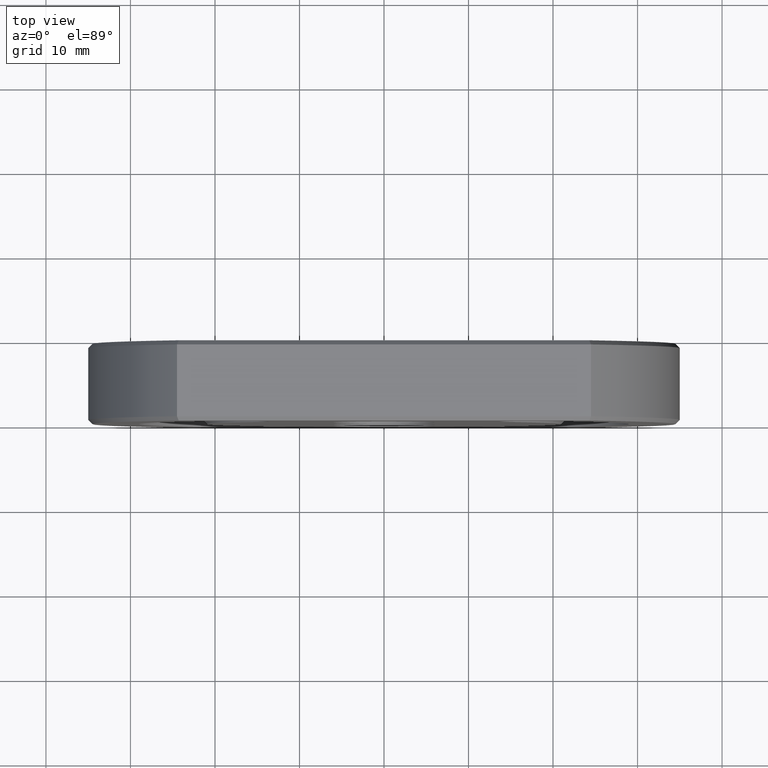
[diagram: clean part render]
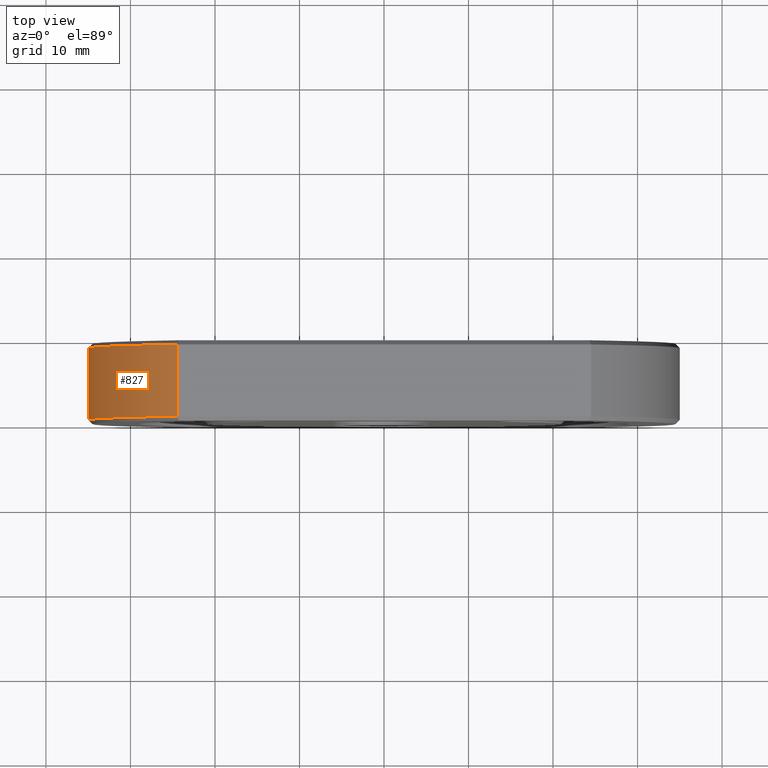
[diagram: same view with one face highlighted and labeled with its STEP entity id]
A machine part, top view. The second image highlights one B-rep face of the part: STEP entity #827.
In plain terms, the highlighted cylindrical surface (partial cylindrical patch) has radius 35 mm, axis along (-0, -1, -0).
Its self-contained STEP definition (entity closure, byte-faithful):
#2 = DIRECTION ( 'NONE',  ( -0.0000000000000000000, -1.000000000000000000, -0.0000000000000000000 ) ) ;
#50 = DIRECTION ( 'NONE',  ( -0.0000000000000000000, -1.000000000000000000, -0.0000000000000000000 ) ) ;
#89 = CARTESIAN_POINT ( 'NONE',  ( -24.49489742783178400, 9.500000000000000000, -25.00000000000000700 ) ) ;
#100 = CARTESIAN_POINT ( 'NONE',  ( 0.0000000000000000000, 9.500000000000000000, 0.0000000000000000000 ) ) ;
#146 = CARTESIAN_POINT ( 'NONE',  ( 0.0000000000000000000, 9.000000000000000000, 0.0000000000000000000 ) ) ;
#168 = DIRECTION ( 'NONE',  ( 0.0000000000000000000, 0.0000000000000000000, 1.000000000000000000 ) ) ;
#208 = CARTESIAN_POINT ( 'NONE',  ( -24.49489742783178400, 9.000000000000000000, 25.00000000000000000 ) ) ;
#209 = CARTESIAN_POINT ( 'NONE',  ( -24.49489742783178400, 0.4999999999999865700, -25.00000000000000700 ) ) ;
#210 = CARTESIAN_POINT ( 'NONE',  ( -24.49489742783178400, 9.000000000000000000, -25.00000000000000700 ) ) ;
#330 = DIRECTION ( 'NONE',  ( -0.0000000000000000000, -1.000000000000000000, -0.0000000000000000000 ) ) ;
#337 = CARTESIAN_POINT ( 'NONE',  ( -24.49489742783178400, 0.4999999999999865700, 25.00000000000000000 ) ) ;
#348 = DIRECTION ( 'NONE',  ( 0.0000000000000000000, 0.0000000000000000000, 1.000000000000000000 ) ) ;
#426 = DIRECTION ( 'NONE',  ( 0.0000000000000000000, 0.0000000000000000000, -1.000000000000000000 ) ) ;
#437 = CARTESIAN_POINT ( 'NONE',  ( -24.49489742783178400, 9.500000000000000000, 25.00000000000000000 ) ) ;
#483 = DIRECTION ( 'NONE',  ( 0.0000000000000000000, -1.000000000000000000, 0.0000000000000000000 ) ) ;
#486 = DIRECTION ( 'NONE',  ( -0.0000000000000000000, 1.000000000000000000, -0.0000000000000000000 ) ) ;
#527 = CARTESIAN_POINT ( 'NONE',  ( 0.0000000000000000000, 0.4999999999999865700, 0.0000000000000000000 ) ) ;
#578 = EDGE_CURVE ( 'NONE', #937, #1219, #1063, .T. ) ;
#579 = EDGE_CURVE ( 'NONE', #1219, #1175, #1260, .T. ) ;
#619 = AXIS2_PLACEMENT_3D ( 'NONE', #100, #2, #426 ) ;
#688 = AXIS2_PLACEMENT_3D ( 'NONE', #146, #483, #348 ) ;
#696 = EDGE_CURVE ( 'NONE', #1126, #937, #1458, .T. ) ;
#715 = AXIS2_PLACEMENT_3D ( 'NONE', #527, #486, #168 ) ;
#769 = EDGE_CURVE ( 'NONE', #1126, #1175, #1400, .T. ) ;
#827 = ADVANCED_FACE ( 'NONE', ( #922 ), #1008, .T. ) ;
#904 = VECTOR ( 'NONE', #330, 1000.000000000000000 ) ;
#910 = ORIENTED_EDGE ( 'NONE', *, *, #696, .T. ) ;
#922 = FACE_OUTER_BOUND ( 'NONE', #1097, .T. ) ;
#937 = VERTEX_POINT ( 'NONE', #210 ) ;
#955 = VECTOR ( 'NONE', #50, 1000.000000000000000 ) ;
#1008 = CYLINDRICAL_SURFACE ( 'NONE', #619, 35.00000000000000000 ) ;
#1063 = LINE ( 'NONE', #89, #955 ) ;
#1097 = EDGE_LOOP ( 'NONE', ( #1423, #1383, #1238, #910 ) ) ;
#1126 = VERTEX_POINT ( 'NONE', #208 ) ;
#1175 = VERTEX_POINT ( 'NONE', #337 ) ;
#1219 = VERTEX_POINT ( 'NONE', #209 ) ;
#1238 = ORIENTED_EDGE ( 'NONE', *, *, #769, .F. ) ;
#1260 = CIRCLE ( 'NONE', #715, 35.00000000000000000 ) ;
#1383 = ORIENTED_EDGE ( 'NONE', *, *, #579, .T. ) ;
#1400 = LINE ( 'NONE', #437, #904 ) ;
#1423 = ORIENTED_EDGE ( 'NONE', *, *, #578, .T. ) ;
#1458 = CIRCLE ( 'NONE', #688, 35.00000000000000000 ) ;